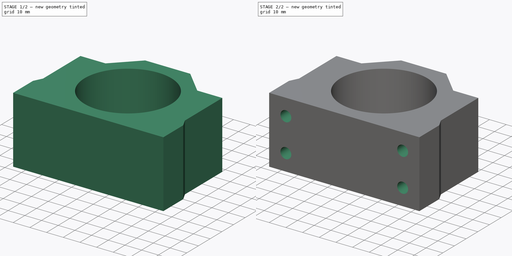
[diagram: build sequence overview — one tinted view per stage of 2, left to right]
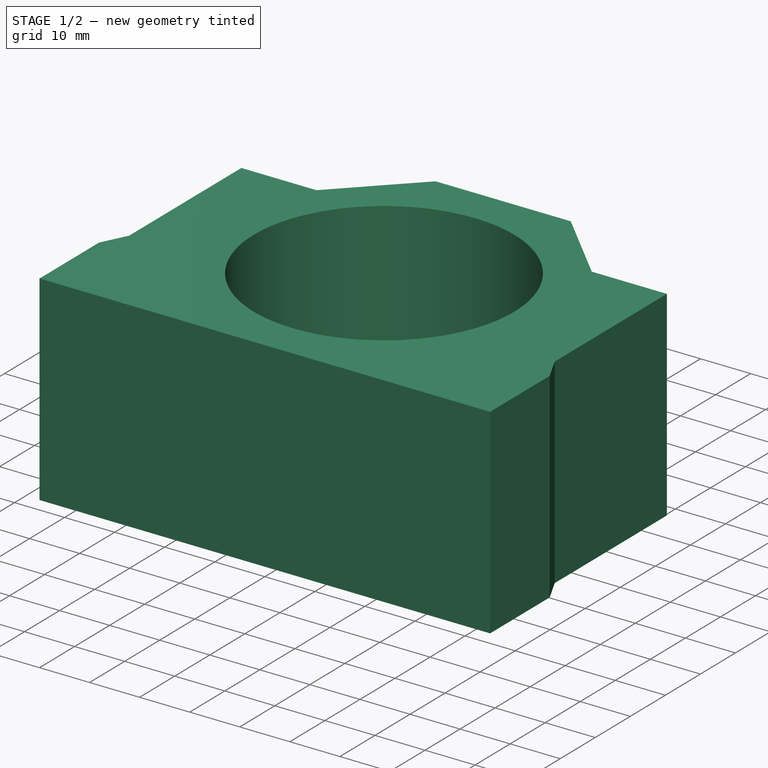
[diagram: stage 1 of 2 — iso view after this stage's code; geometry added in this stage tinted green]
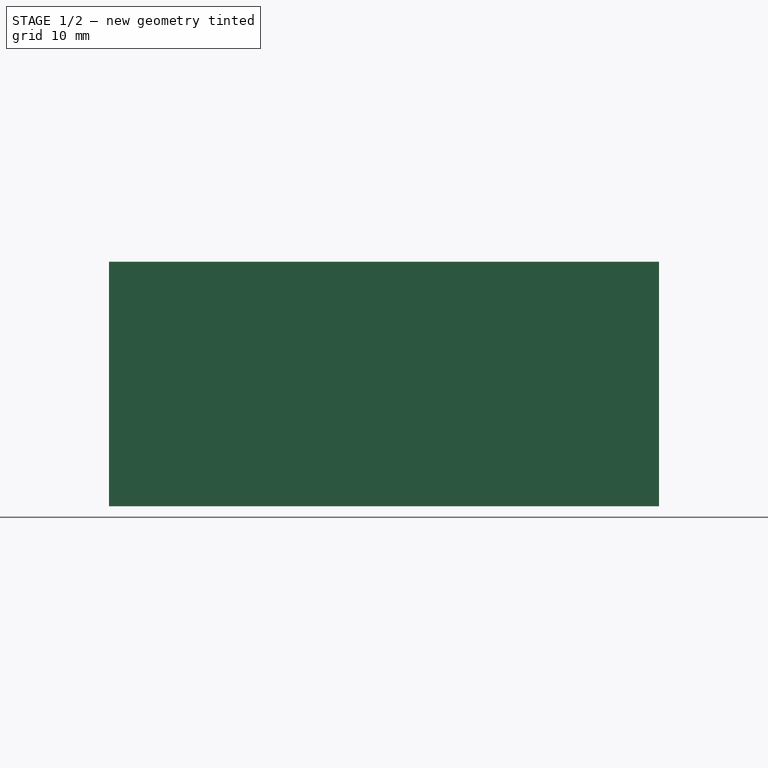
[diagram: stage 1 of 2 — front view after this stage's code; geometry added in this stage tinted green]
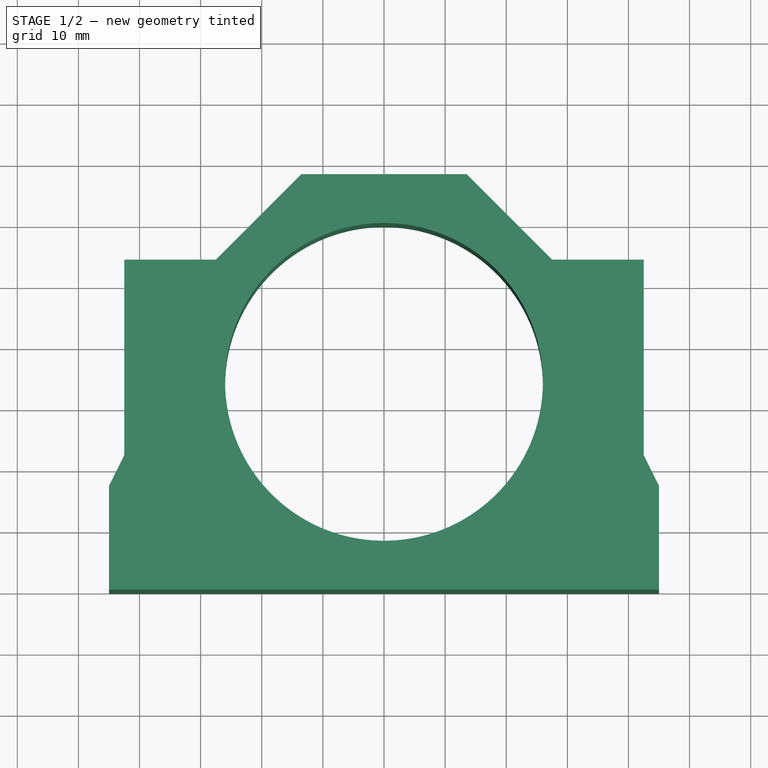
[diagram: stage 1 of 2 — top view after this stage's code; geometry added in this stage tinted green]
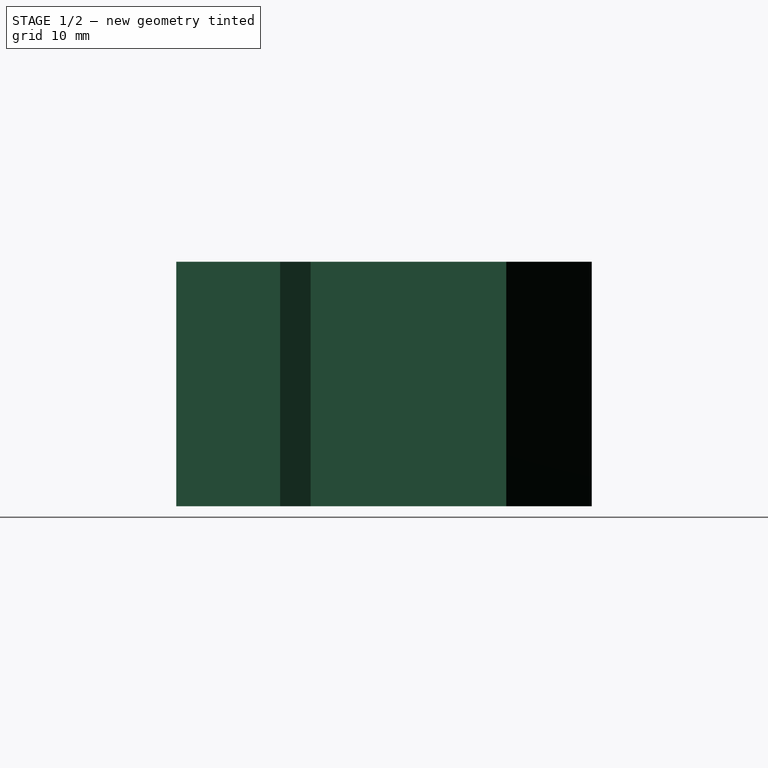
[diagram: stage 1 of 2 — right view after this stage's code; geometry added in this stage tinted green]
FCSTD DOCUMENT  (FreeCAD 0.19R)
Label: spindle_holder
License: All rights reserved
LicenseURL: http://en.wikipedia.org/wiki/All_rights_reserved
objects: PartDesign::CoordinateSystem×4, Sketcher::SketchObject×2, PartDesign::Pad×1, PartDesign::Pocket×1, PartDesign::Body×1
note: 11 computed .brp shape members not serialized (recipe doc carries the construction recipe); baked Part::Feature solids carry a one-line shape summary decoded from their .brp

FEATURE [Sketcher::SketchObject] Sketch
  FullyConstrained = true
  MapMode = 5
  Support = -> [XY_Plane]
  sketch-geometry (13):
    g0: LineSegment StartX=-45 StartY=0 StartZ=0 EndX=45 EndY=2e-16 EndZ=0
    g1: LineSegment StartX=-45 StartY=0 StartZ=0 EndX=-45 EndY=17 EndZ=0
    g2: LineSegment StartX=45 StartY=2e-16 StartZ=0 EndX=45 EndY=17 EndZ=0
    g3: LineSegment StartX=-45 StartY=17 StartZ=0 EndX=-42.5 EndY=22 EndZ=0
    g4: LineSegment StartX=45 StartY=17 StartZ=0 EndX=42.5 EndY=22 EndZ=0
    g5: LineSegment StartX=-42.5 StartY=22 StartZ=0 EndX=-42.5 EndY=54 EndZ=0
    g6: LineSegment StartX=42.5 StartY=22 StartZ=0 EndX=42.5 EndY=54 EndZ=0
    g7: LineSegment StartX=-42.5 StartY=54 StartZ=0 EndX=-27.5 EndY=54 EndZ=0
    g8: LineSegment StartX=-27.5 StartY=54 StartZ=0 EndX=-13.5 EndY=68 EndZ=0
    g9: LineSegment StartX=-13.5 StartY=68 StartZ=0 EndX=13.5 EndY=68 EndZ=0
    g10: LineSegment StartX=13.5 StartY=68 StartZ=0 EndX=27.5 EndY=54 EndZ=0
    g11: LineSegment StartX=27.5 StartY=54 StartZ=0 EndX=42.5 EndY=54 EndZ=0
    g12: Circle CenterX=0 CenterY=34 CenterZ=0 NormalX=0 NormalY=0 NormalZ=1 AngleXU=0 Radius=26
  constraints (35):
    c: PointOnObject(g0,g-1)
    c: Coincident(g1,g0)
    c: Coincident(g2,g0)
    c: Vertical(g2)
    c: Vertical(g1)
    c: Coincident(g3,g1)
    c: Coincident(g4,g2)
    c: Coincident(g5,g3)
    c: Vertical(g5)
    c: Coincident(g6,g4)
    c: Vertical(g6)
    c: Coincident(g7,g5)
    c: Horizontal(g7)
    c: Coincident(g8,g7)
    c: Coincident(g9,g8)
    c: Coincident(g10,g9)
    c: Coincident(g11,g10)
    c: Coincident(g6,g11)
    c: PointOnObject(g12,g-2)
    c: Diameter(g12) = 52
    c: DistanceY(g-1,g12) = 34
    c: DistanceX(g0,g0) = 90
    c: DistanceX(g5,g6) = 85
    c: Symmetric(g5,g6,g-2)
    c: Symmetric(g0,g0,g-2)
    c: DistanceX(g7,g10) = 55
    c: DistanceX(g9,g9) = 27
    c: Symmetric(g7,g10,g-2)
    c: Symmetric(g9,g8,g-2)
    c: DistanceY(g0,g5) = 54
    c: DistanceY(g0,g8) = 68
    c: Equal(g2,g1)
    c: DistanceY(g2,g2) = 17
    c: DistanceY(g6,g6) = 32
    c: Equal(g6,g5)
FEATURE [PartDesign::Pad] Pad
  Direction = (1,1,1)
  Length = 40
  Length2 = 100
  Profile = -> Sketch
  Type = 0
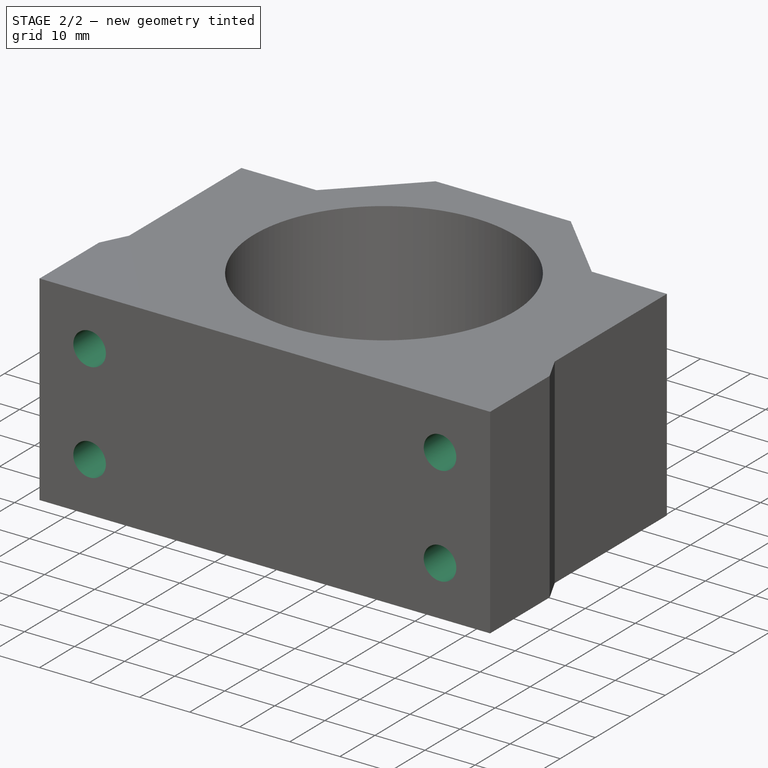
[diagram: stage 2 of 2 — iso view after this stage's code; geometry added in this stage tinted green]
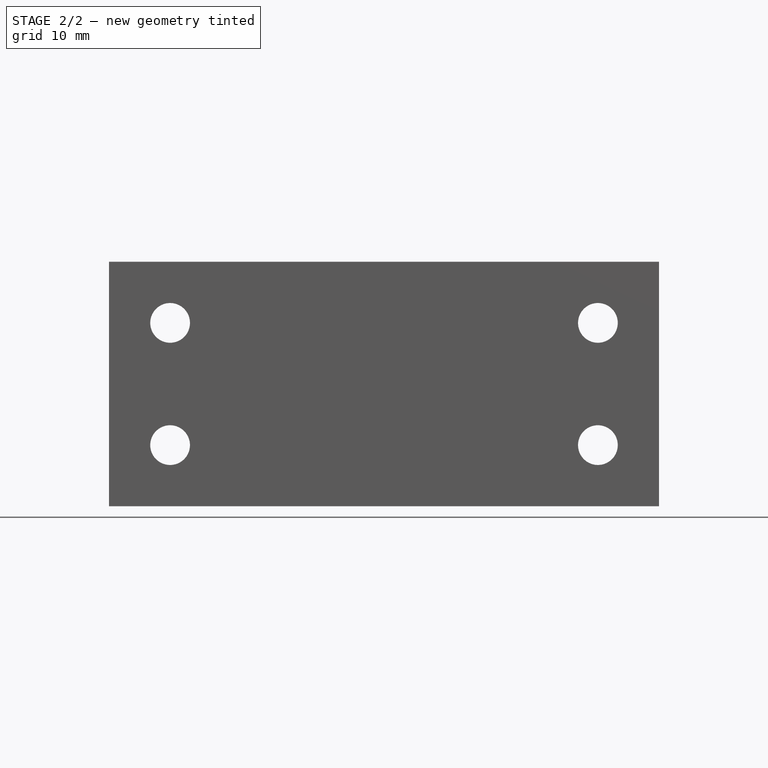
[diagram: stage 2 of 2 — front view after this stage's code; geometry added in this stage tinted green]
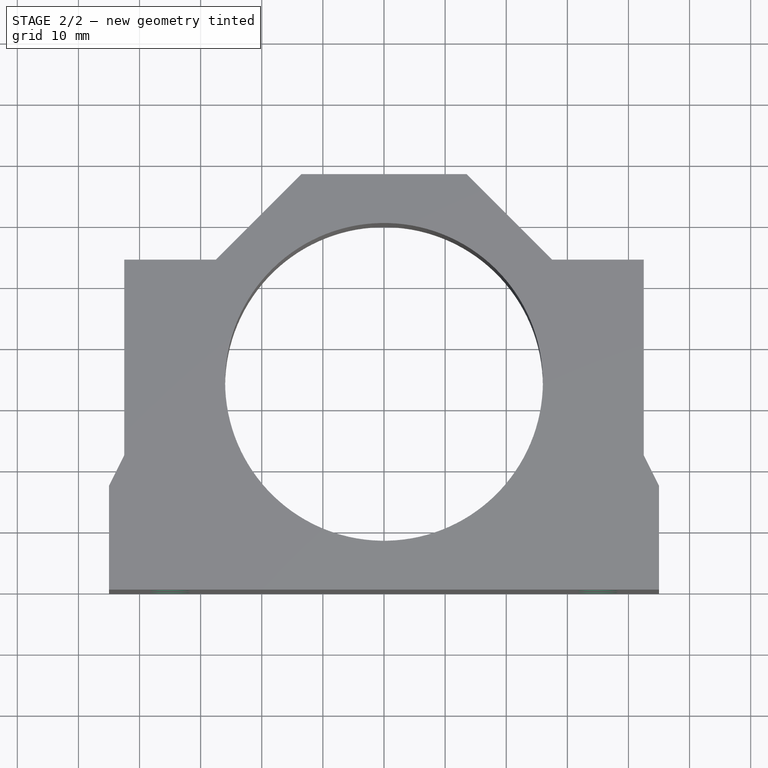
[diagram: stage 2 of 2 — top view after this stage's code; geometry added in this stage tinted green]
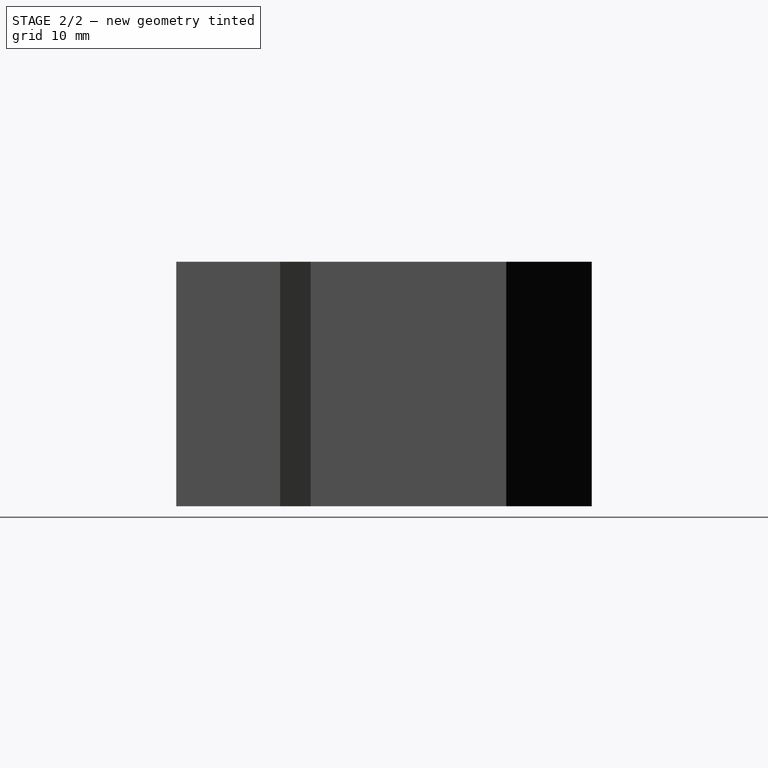
[diagram: stage 2 of 2 — right view after this stage's code; geometry added in this stage tinted green]
FEATURE [Sketcher::SketchObject] Sketch001
  FullyConstrained = true
  MapMode = 5
  Placement = pos=(0,0,0) rot=(1,0,0;1.5708rad)
  Support = -> [Pad]
  sketch-geometry (4):
    g0: Circle CenterX=-35 CenterY=30 CenterZ=0 NormalX=0 NormalY=0 NormalZ=1 AngleXU=0 Radius=3.25
    g1: Circle CenterX=-35 CenterY=10 CenterZ=0 NormalX=0 NormalY=0 NormalZ=1 AngleXU=0 Radius=3.25
    g2: Circle CenterX=35 CenterY=10 CenterZ=0 NormalX=0 NormalY=0 NormalZ=1 AngleXU=0 Radius=3.25
    g3: Circle CenterX=35 CenterY=30 CenterZ=0 NormalX=0 NormalY=0 NormalZ=1 AngleXU=0 Radius=3.25
  constraints (10):
    c: Symmetric(g3,g0,g-2)
    c: Symmetric(g2,g1,g-2)
    c: Equal(g3,g0)
    c: Equal(g0,g1)
    c: Diameter(g3) = 6.5
    c: Equal(g2,g1)
    c: DistanceX(g1,g2) = 70
    c: DistanceX(g0,g3) = 70
    c: DistanceY(g1,g0) = 20
    c: DistanceY(g-1,g1) = 10
FEATURE [PartDesign::Pocket] Pocket
  BaseFeature = -> Pad
  Length = 5
  Length2 = 100
  Profile = -> Sketch001
  Type = 1
FEATURE [PartDesign::CoordinateSystem] LCS_m1
  AttacherType = Attacher::AttachEngine3D
  MapMode = 11
  Placement = pos=(-35,0,30) rot=(0.57735,-0.57735,0.57735;2.0944rad)
  Support = -> [Pocket]
FEATURE [PartDesign::CoordinateSystem] LCS_h2
  AttacherType = Attacher::AttachEngine3D
  MapMode = 11
  Placement = pos=(35,0,30) rot=(0.57735,-0.57735,0.57735;2.0944rad)
  Support = -> [Pocket]
FEATURE [PartDesign::CoordinateSystem] LCS_motor_mount
  AttacherType = Attacher::AttachEngine3D
  MapMode = 11
  Placement = pos=(0,34,40) rot=(0,0,1;1.5708rad)
  Support = -> [Pocket]
FEATURE [PartDesign::CoordinateSystem] LCS_motor_mount1
  AttacherType = Attacher::AttachEngine3D
  MapMode = 11
  Placement = pos=(0,34,0) rot=(0,0,1;1.5708rad)
  Support = -> [Pocket]
FEATURE [PartDesign::Body] Body
  Group = -> [Sketch,Pad,Sketch001,Pocket,LCS_m1,LCS_h2,LCS_motor_mount,LCS_motor_mount1]
  Origin = -> Origin
  Tip = -> Pocket
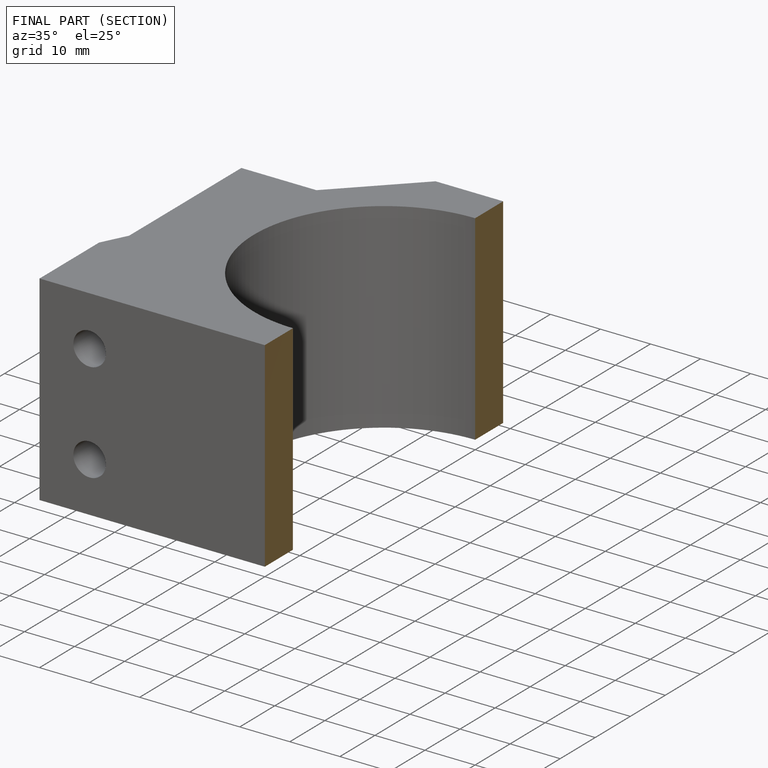
[diagram: finished part — half-section view (interior)]
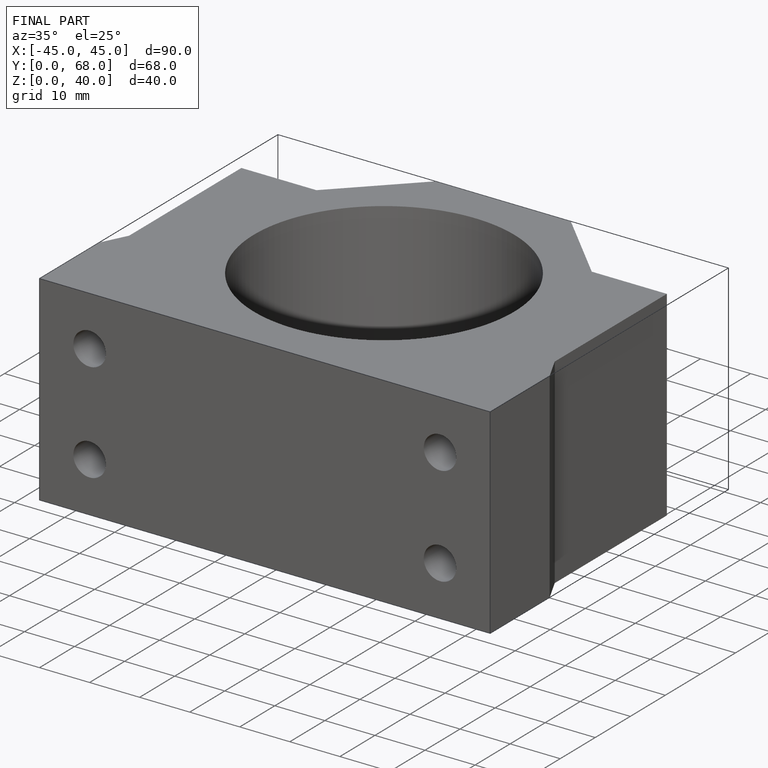
[diagram: finished part — iso view with bounding-box wireframe]
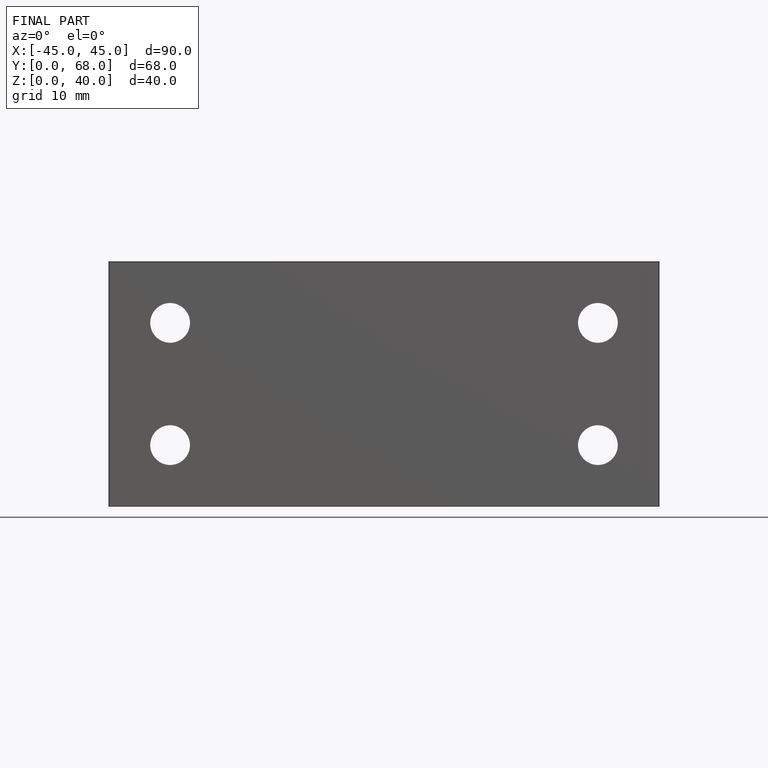
[diagram: finished part — front view with bounding-box wireframe]
